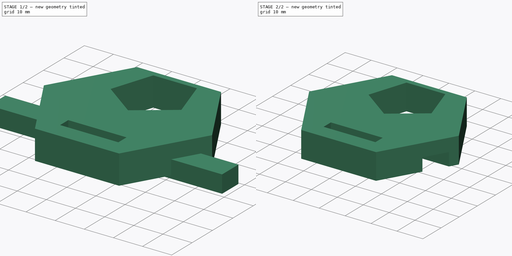
[diagram: build sequence overview — one tinted view per stage of 2, left to right]
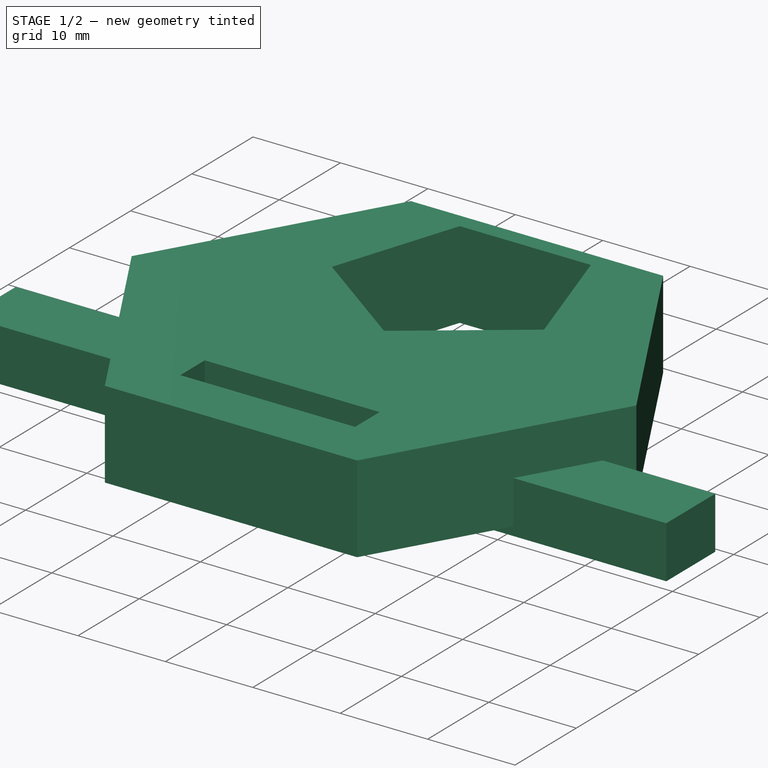
[diagram: stage 1 of 2 — iso view after this stage's code; geometry added in this stage tinted green]
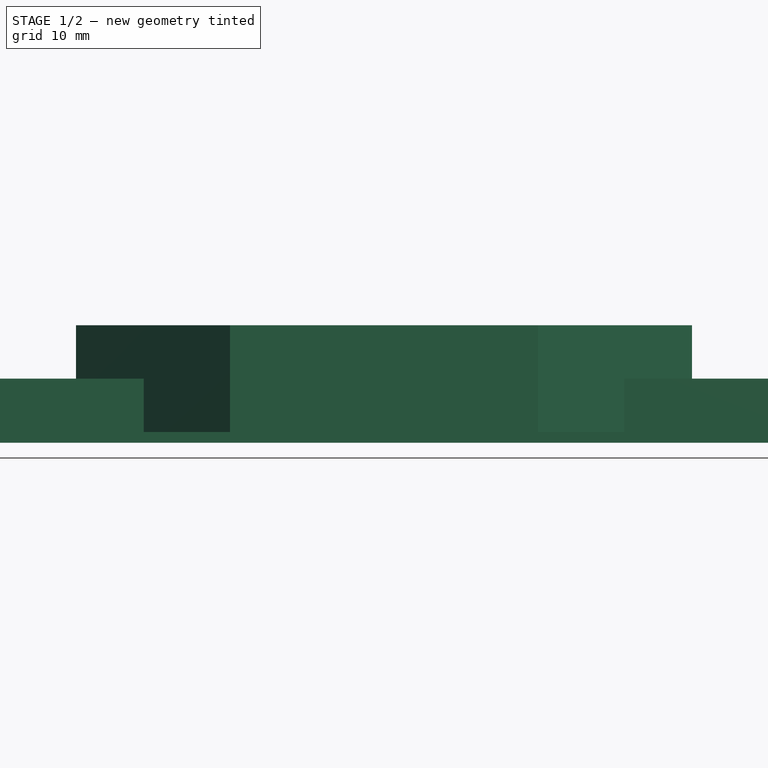
[diagram: stage 1 of 2 — front view after this stage's code; geometry added in this stage tinted green]
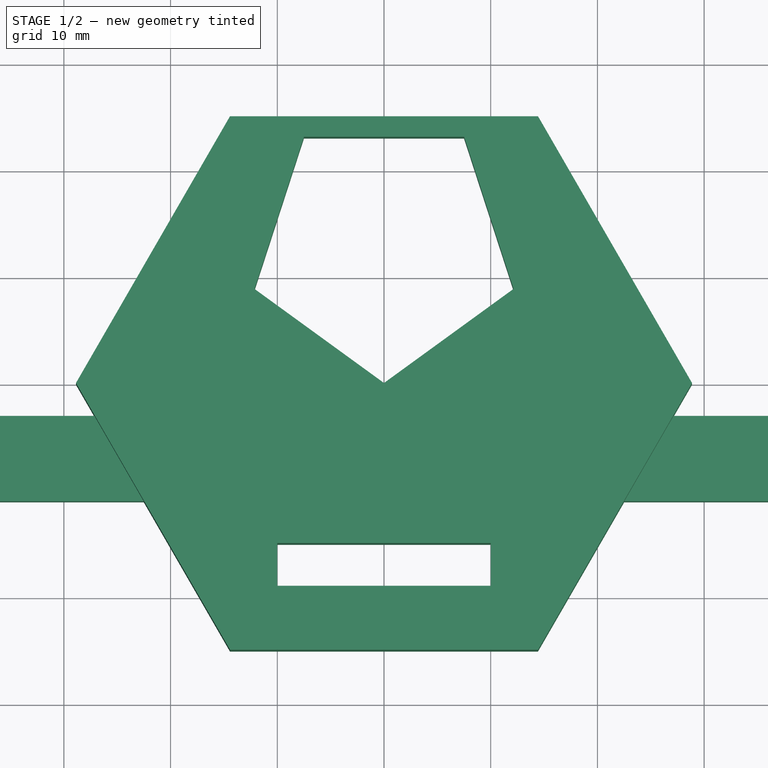
[diagram: stage 1 of 2 — top view after this stage's code; geometry added in this stage tinted green]
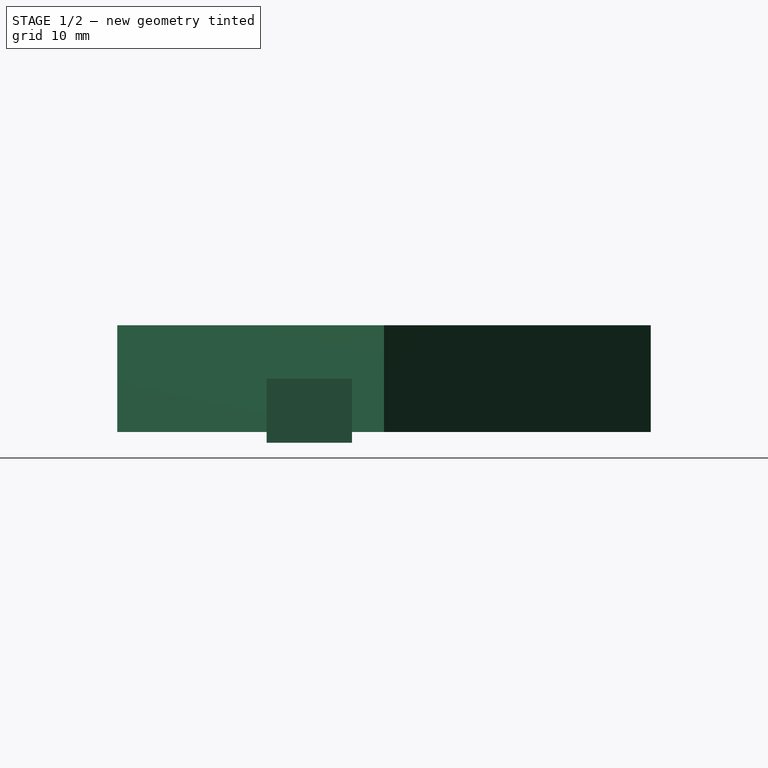
[diagram: stage 1 of 2 — right view after this stage's code; geometry added in this stage tinted green]
FCSTD DOCUMENT  (FreeCAD 1.0R39109 (Git))
Label: multi_hole_multi_poly
License: All rights reserved
LicenseURL: https://en.wikipedia.org/wiki/All_rights_reserved
objects: Sketcher::SketchObject×2, Part::Extrusion×2, Part::Cut×1
note: 7 computed .brp shape members not serialized (recipe doc carries the construction recipe); baked Part::Feature solids carry a one-line shape summary decoded from their .brp

FEATURE [Sketcher::SketchObject] Sketch
  ArcFitTolerance = 1e-06
  FullyConstrained = true
  MakeInternals = false
  sketch-geometry (17):
    g0: LineSegment StartX=28.8675 StartY=0 StartZ=0 EndX=14.4338 EndY=25 EndZ=0
    g1: LineSegment StartX=14.4338 StartY=25 StartZ=0 EndX=-14.4338 EndY=25 EndZ=0
    g2: LineSegment StartX=-14.4338 StartY=25 StartZ=0 EndX=-28.8675 EndY=-1.07e-14 EndZ=0
    g3: LineSegment StartX=-28.8675 StartY=-1.07e-14 StartZ=0 EndX=-14.4338 EndY=-25 EndZ=0
    g4: LineSegment StartX=-14.4338 StartY=-25 StartZ=0 EndX=14.4338 EndY=-25 EndZ=0
    g5: LineSegment StartX=14.4338 StartY=-25 StartZ=0 EndX=28.8675 EndY=0 EndZ=0
    g6: Circle [constr] CenterX=0 CenterY=0 CenterZ=0 NormalX=0 NormalY=0 NormalZ=1 AngleXU=0 Radius=28.8675
    g7: LineSegment StartX=7.5 StartY=23.0826 StartZ=0 EndX=-7.5 EndY=23.0826 EndZ=0
    g8: LineSegment StartX=-7.5 StartY=23.0826 StartZ=0 EndX=-12.1353 EndY=8.81678 EndZ=0
    g9: LineSegment StartX=-12.1353 StartY=8.81678 StartZ=0 EndX=0 EndY=0 EndZ=0
    g10: LineSegment StartX=0 StartY=0 StartZ=0 EndX=12.1353 EndY=8.81678 EndZ=0
    g11: LineSegment StartX=12.1353 StartY=8.81678 StartZ=0 EndX=7.5 EndY=23.0826 EndZ=0
    g12: Circle [constr] CenterX=-3.1e-15 CenterY=12.7598 CenterZ=0 NormalX=0 NormalY=0 NormalZ=1 AngleXU=0 Radius=12.7598
    g13: LineSegment StartX=-10 StartY=-15 StartZ=0 EndX=-10 EndY=-19 EndZ=0
    g14: LineSegment StartX=-10 StartY=-19 StartZ=0 EndX=10 EndY=-19 EndZ=0
    g15: LineSegment StartX=10 StartY=-19 StartZ=0 EndX=10 EndY=-15 EndZ=0
    g16: LineSegment StartX=10 StartY=-15 StartZ=0 EndX=-10 EndY=-15 EndZ=0
  constraints (42):
    c: Coincident(g0,g1)
    c: Coincident(g1,g2)
    c: Coincident(g2,g3)
    c: Coincident(g3,g4)
    c: Coincident(g4,g5)
    c: Coincident(g5,g0)
    c: Equal(g0, g1-g5) x5
    c: PointOnObject(g0,g6)
    c: PointOnObject(g1,g6)
    c: PointOnObject(g2,g6)
    c: PointOnObject(g3,g6)
    c: PointOnObject(g4,g6)
    c: PointOnObject(g5,g6)
    c: PointOnObject(g5,g-1)
    c: Distance(g5,g2) = 50
    c: Coincident(g7,g8)
    c: Coincident(g8,g9)
    c: Coincident(g9,g10)
    c: Coincident(g10,g11)
    c: Coincident(g11,g7)
    c: Equal(g7, g8-g11) x4
    c: PointOnObject(g7,g12)
    c: PointOnObject(g8,g12)
    c: PointOnObject(g9,g12)
    c: PointOnObject(g10,g12)
    c: PointOnObject(g11,g12)
    c: Distance(g9,g9) = 15
    c: Horizontal(g7)
    c: Coincident(g9,g6)
    c: Coincident(g6,g-1)
    c: Coincident(g13,g14)
    c: Coincident(g14,g15)
    c: Coincident(g15,g16)
    c: Coincident(g16,g13)
    c: Vertical(g13)
    c: Vertical(g15)
    c: Horizontal(g14)
    c: Horizontal(g16)
    c: DistanceX(g16,g16) = 20
    c: Distance(g15,g15) = 4
    c: Distance(g13,g-1) = 15
    c: Distance(g13,g-2) = 10
FEATURE [Part::Extrusion] Extrude
  Base = -> Sketch
  Dir = (0,0,1)
  DirMode = 2
  FaceMakerClass = Part::FaceMakerBullseye
  FaceMakerMode = 3
  LengthFwd = 10
  LengthRev = 0
  Solid = true
  Symmetric = false
FEATURE [Sketcher::SketchObject] Sketch001
  ArcFitTolerance = 1e-06
  FullyConstrained = true
  MakeInternals = false
  MapMode = 5
  sketch-geometry (4):
    g0: LineSegment StartX=-40 StartY=-3 StartZ=0 EndX=-40 EndY=-11 EndZ=0
    g1: LineSegment StartX=-40 StartY=-11 StartZ=0 EndX=40 EndY=-11 EndZ=0
    g2: LineSegment StartX=40 StartY=-11 StartZ=0 EndX=40 EndY=-3 EndZ=0
    g3: LineSegment StartX=40 StartY=-3 StartZ=0 EndX=-40 EndY=-3 EndZ=0
  constraints (12):
    c: Coincident(g0,g1)
    c: Coincident(g1,g2)
    c: Coincident(g2,g3)
    c: Coincident(g3,g0)
    c: Vertical(g0)
    c: Vertical(g2)
    c: Horizontal(g1)
    c: Horizontal(g3)
    c: DistanceY(g0,g0) = 8
    c: DistanceX(g1,g1) = 80
    c: DistanceX(g0,g-1) = 40
    c: DistanceY(g0,g-1) = 3
FEATURE [Part::Extrusion] Extrude001
  Base = -> Sketch001
  Dir = (0,0,1)
  DirMode = 2
  FaceMakerClass = Part::FaceMakerBullseye
  FaceMakerMode = 3
  LengthFwd = 5
  LengthRev = 1
  Solid = true
  Symmetric = false
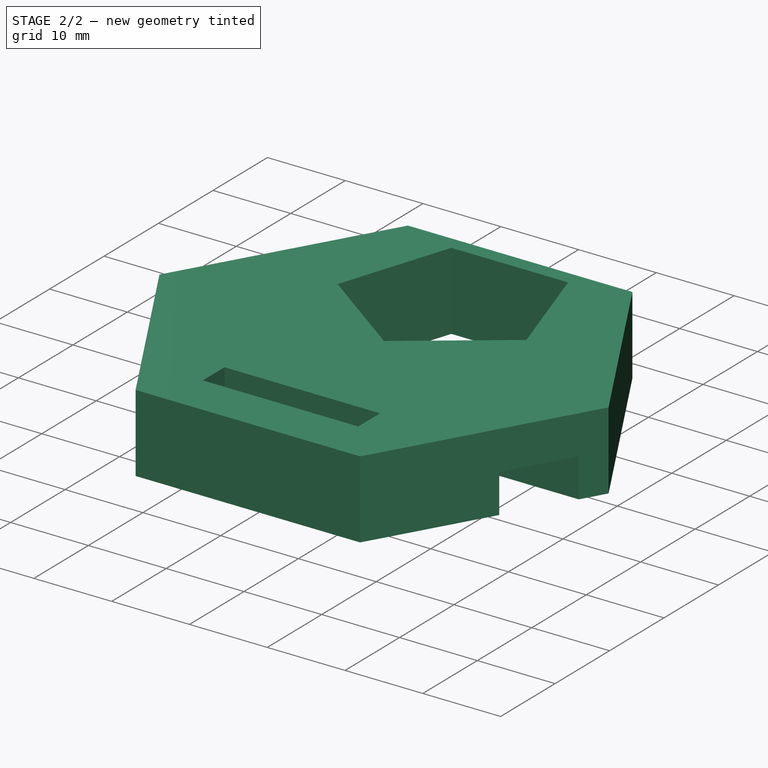
[diagram: stage 2 of 2 — iso view after this stage's code; geometry added in this stage tinted green]
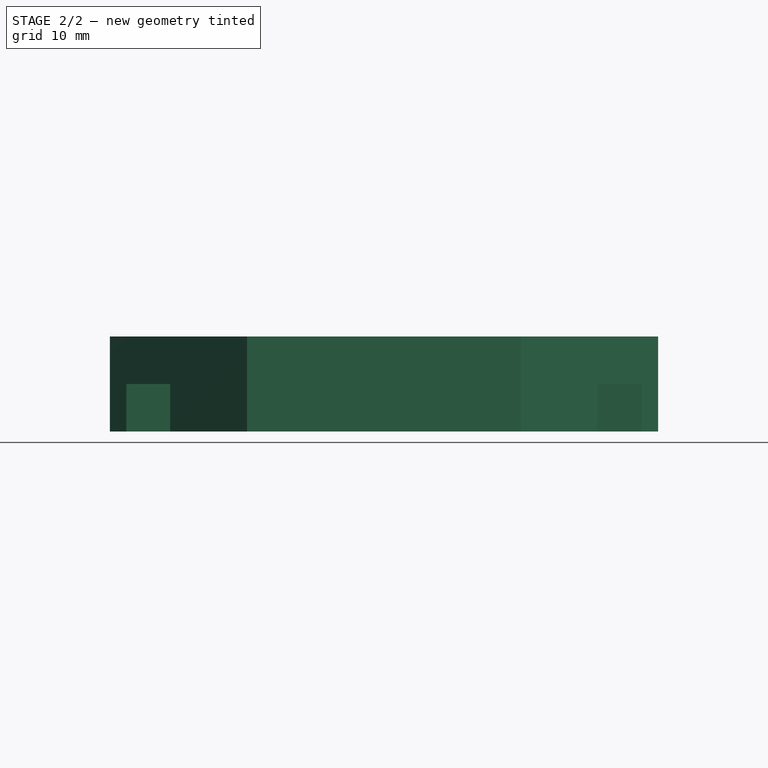
[diagram: stage 2 of 2 — front view after this stage's code; geometry added in this stage tinted green]
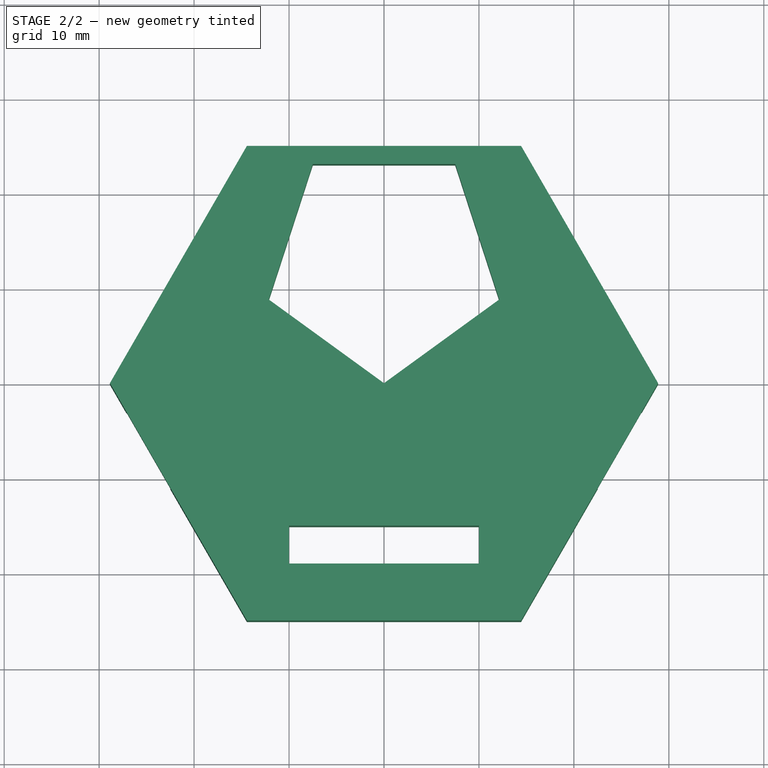
[diagram: stage 2 of 2 — top view after this stage's code; geometry added in this stage tinted green]
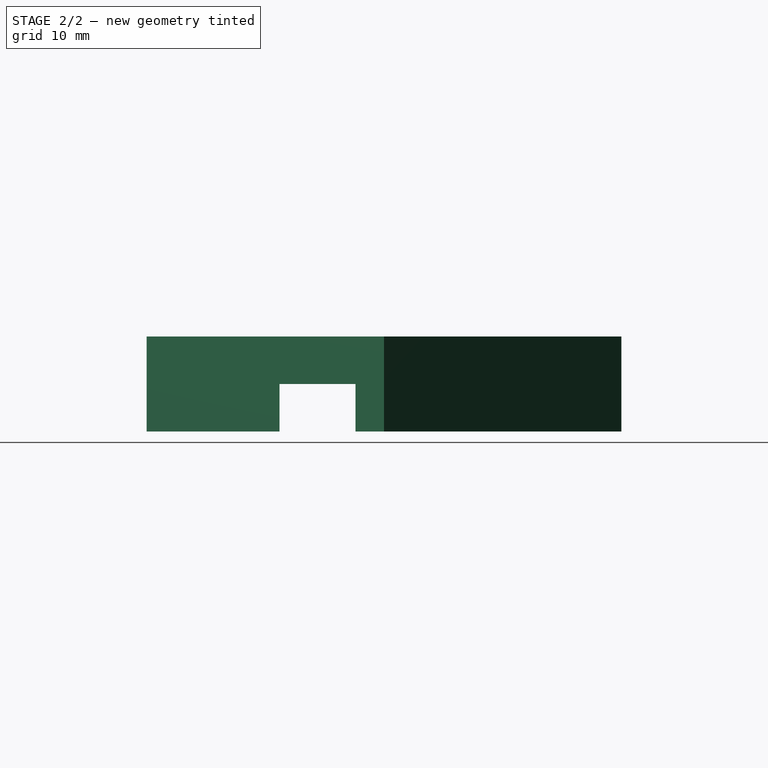
[diagram: stage 2 of 2 — right view after this stage's code; geometry added in this stage tinted green]
FEATURE [Part::Cut] Cut
  Base = -> Extrude
  Tool = -> Extrude001
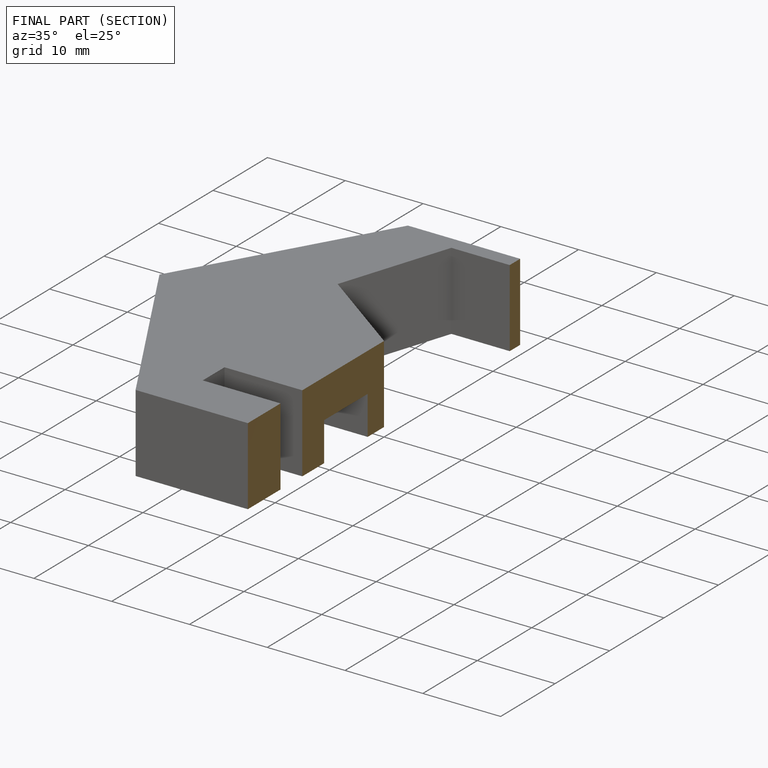
[diagram: finished part — half-section view (interior)]
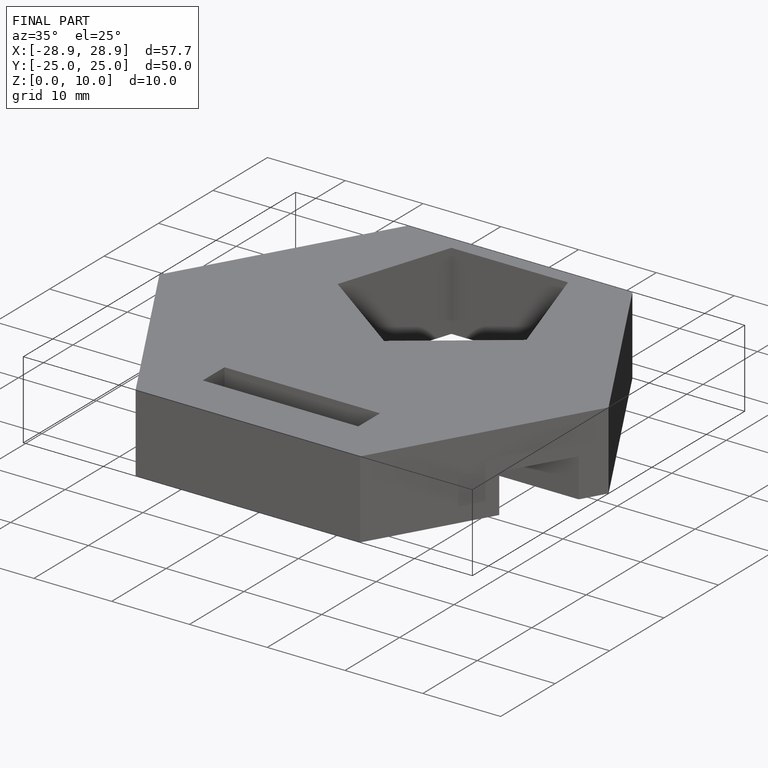
[diagram: finished part — iso view with bounding-box wireframe]
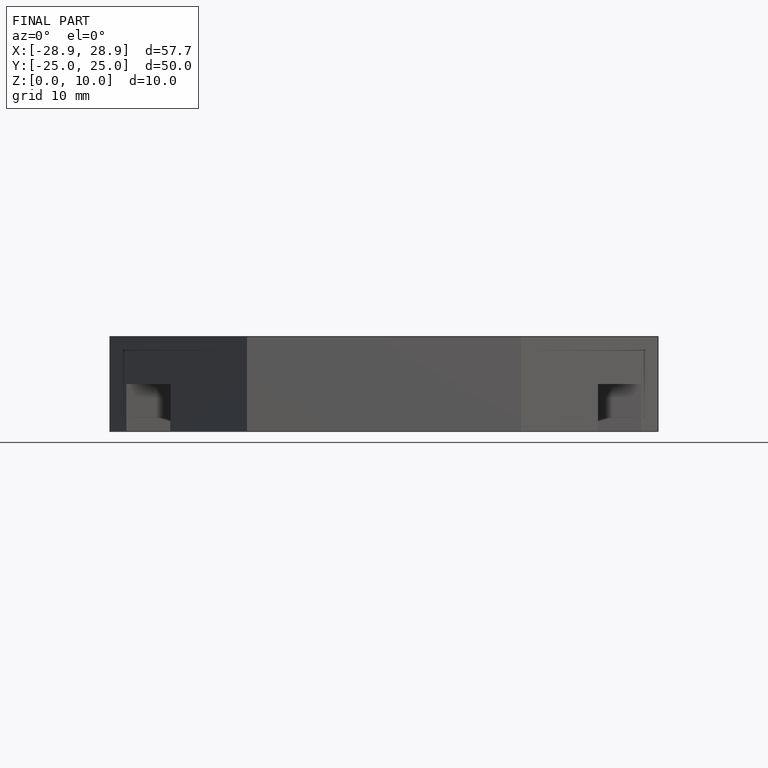
[diagram: finished part — front view with bounding-box wireframe]
